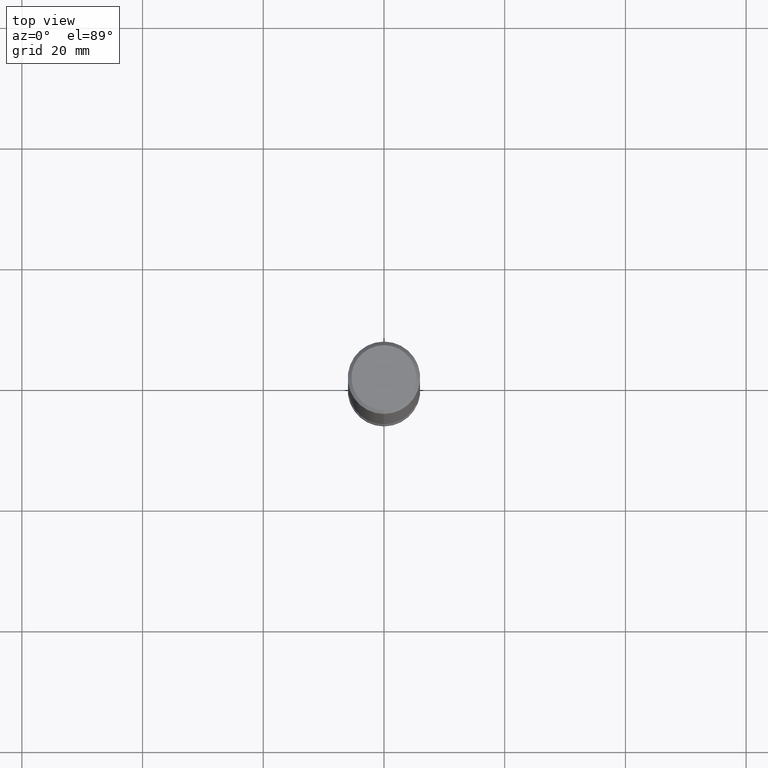
[diagram: clean part render]
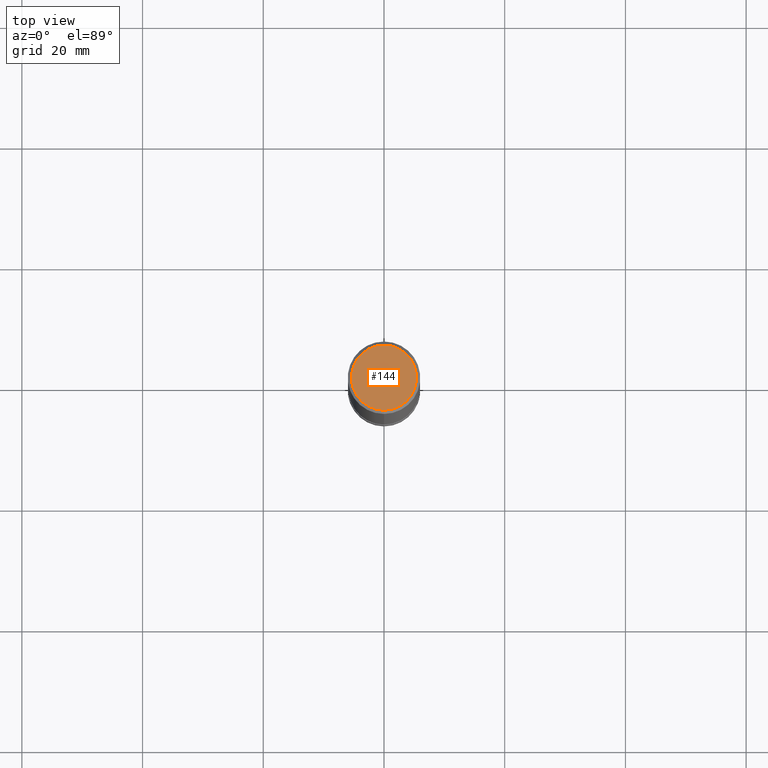
[diagram: same view with one face highlighted and labeled with its STEP entity id]
A machine part, top view. The second image highlights one B-rep face of the part: STEP entity #144.
In plain terms, the highlighted planar face has unit normal (-0, 0, 1).
Its self-contained STEP definition (entity closure, byte-faithful):
#92=EDGE_CURVE('',#104,#204,#229,.T.);
#104=VERTEX_POINT('',#241);
#108=EDGE_CURVE('',#204,#104,#246,.T.);
#144=ADVANCED_FACE('',(#289),#290,.T.);
#204=VERTEX_POINT('',#356);
#229=CIRCLE('',#375,5.4);
#241=CARTESIAN_POINT('',(0.0,5.4,0.0));
#246=CIRCLE('',#396,5.4);
#289=FACE_OUTER_BOUND('',#445,.T.);
#290=PLANE('',#446);
#356=CARTESIAN_POINT('',(6.61287431064084E-016,-5.4,0.0));
#375=AXIS2_PLACEMENT_3D('',#540,#541,#542);
#396=AXIS2_PLACEMENT_3D('',#557,#558,#559);
#445=EDGE_LOOP('',(#620,#621));
#446=AXIS2_PLACEMENT_3D('',#622,#623,#624);
#540=CARTESIAN_POINT('',(0.0,0.0,0.0));
#541=DIRECTION('',(0.0,0.0,-1.0));
#542=DIRECTION('',(0.0,1.0,0.0));
#557=CARTESIAN_POINT('',(0.0,0.0,0.0));
#558=DIRECTION('',(0.0,0.0,-1.0));
#559=DIRECTION('',(0.0,1.0,0.0));
#620=ORIENTED_EDGE('',*,*,#92,.F.);
#621=ORIENTED_EDGE('',*,*,#108,.F.);
#622=CARTESIAN_POINT('',(0.0,2.7,0.0));
#623=DIRECTION('',(-0.0,0.0,1.0));
#624=DIRECTION('',(0.0,-1.0,0.0));